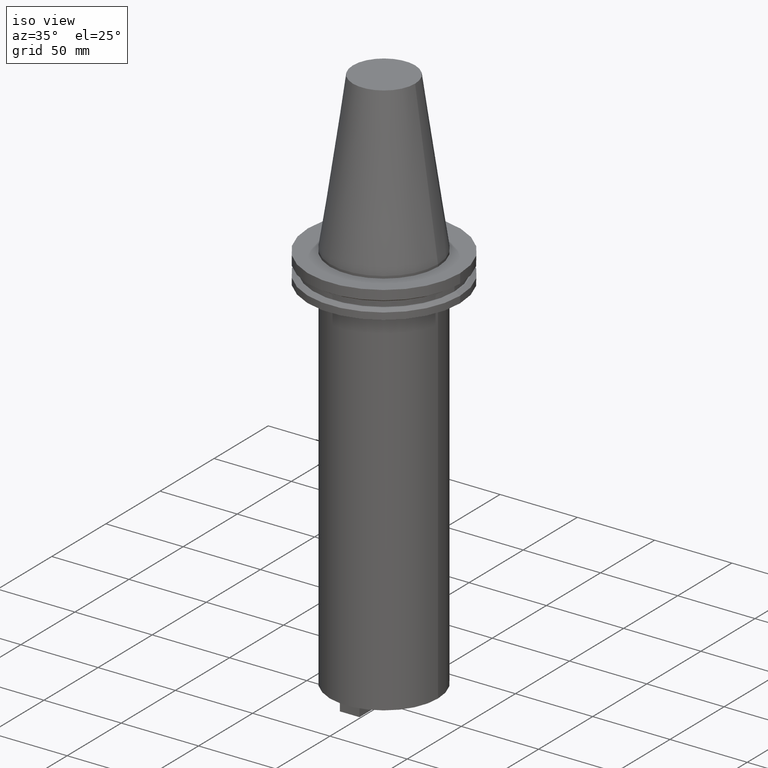
[diagram: clean part render]
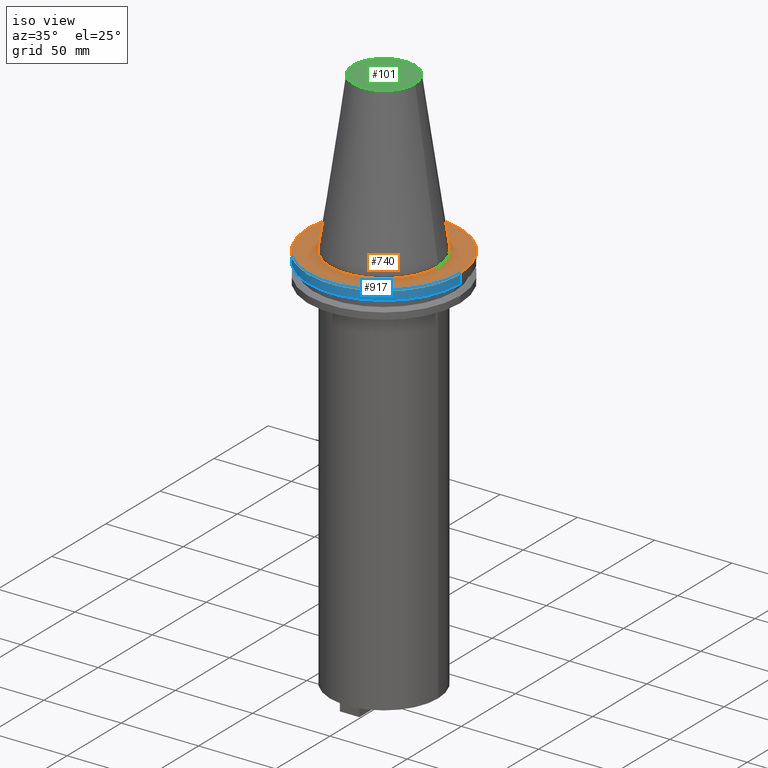
[diagram: same view with three faces highlighted in distinct colors, each labeled with its STEP entity id]
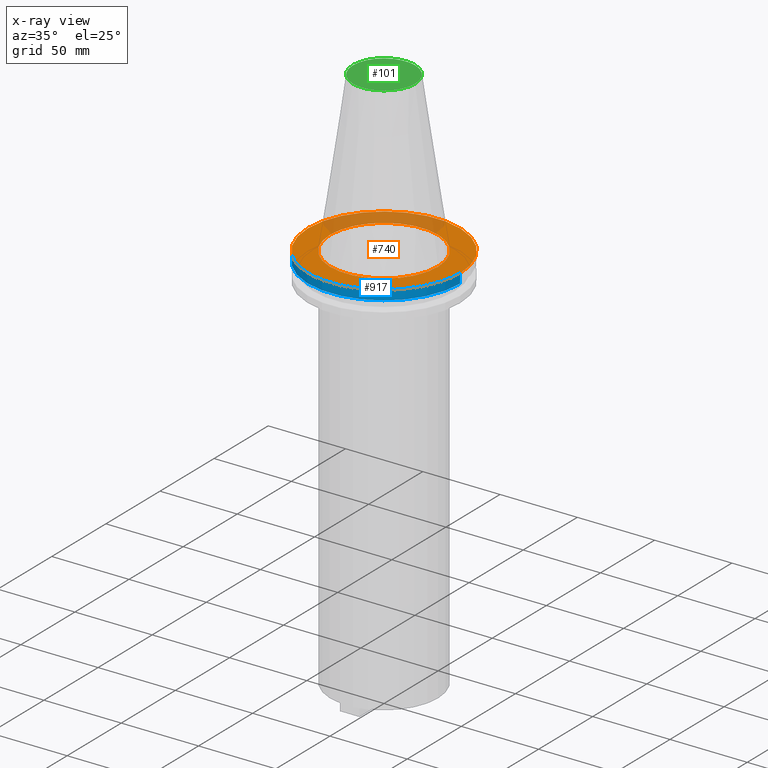
[diagram: x-ray of the same camera — body ghosted, the three highlighted faces saturated]
A machine part, iso view with three faces highlighted in distinct colors.
The next image is the same camera in x-ray (body ghosted, the three faces saturated) — at least one of them is partly hidden behind the body in this view.
Their STEP definitions:

[orange] entity #740 — the highlighted planar face has unit normal (0, 0, -1).
#29 = ORIENTED_EDGE ( 'NONE', *, *, #197, .T. ) ;
#50 = EDGE_LOOP ( 'NONE', ( #782, #29 ) ) ;
#74 = ORIENTED_EDGE ( 'NONE', *, *, #760, .F. ) ;
#84 = AXIS2_PLACEMENT_3D ( 'NONE', #615, #350, #563 ) ;
#112 = ORIENTED_EDGE ( 'NONE', *, *, #883, .F. ) ;
#115 = DIRECTION ( 'NONE',  ( 1.000000000000000000, 0.000000000000000000, 0.000000000000000000 ) ) ;
#136 = FACE_BOUND ( 'NONE', #955, .T. ) ;
#197 = EDGE_CURVE ( 'NONE', #891, #981, #912, .T. ) ;
#213 = AXIS2_PLACEMENT_3D ( 'NONE', #736, #822, #115 ) ;
#225 = DIRECTION ( 'NONE',  ( -0.000000000000000000, -0.000000000000000000, 1.000000000000000000 ) ) ;
#263 = VERTEX_POINT ( 'NONE', #319 ) ;
#280 = CIRCLE ( 'NONE', #84, 49.21499999999999631 ) ;
#293 = CARTESIAN_POINT ( 'NONE',  ( 0.000000000000000000, 49.21499999999999631, -1.499999999999992895 ) ) ;
#310 = CIRCLE ( 'NONE', #895, 34.92499999999999005 ) ;
#319 = CARTESIAN_POINT ( 'NONE',  ( -34.92499999999999005, 4.277078946022130098E-15, -1.499999999999987566 ) ) ;
#321 = EDGE_CURVE ( 'NONE', #981, #891, #280, .T. ) ;
#350 = DIRECTION ( 'NONE',  ( -0.000000000000000000, -0.000000000000000000, 1.000000000000000000 ) ) ;
#365 = DIRECTION ( 'NONE',  ( -0.000000000000000000, -0.000000000000000000, 1.000000000000000000 ) ) ;
#397 = DIRECTION ( 'NONE',  ( 1.000000000000000000, 0.000000000000000000, 0.000000000000000000 ) ) ;
#433 = CARTESIAN_POINT ( 'NONE',  ( 0.000000000000000000, 0.000000000000000000, -1.499999999999987566 ) ) ;
#563 = DIRECTION ( 'NONE',  ( 1.000000000000000000, 0.000000000000000000, 0.000000000000000000 ) ) ;
#567 = VERTEX_POINT ( 'NONE', #923 ) ;
#598 = DIRECTION ( 'NONE',  ( 1.000000000000000000, 0.000000000000000000, 0.000000000000000000 ) ) ;
#603 = AXIS2_PLACEMENT_3D ( 'NONE', #293, #905, #677 ) ;
#615 = CARTESIAN_POINT ( 'NONE',  ( 0.000000000000000000, 0.000000000000000000, -1.499999999999987566 ) ) ;
#662 = PLANE ( 'NONE',  #603 ) ;
#677 = DIRECTION ( 'NONE',  ( -1.000000000000000000, 0.000000000000000000, -0.000000000000000000 ) ) ;
#700 = CARTESIAN_POINT ( 'NONE',  ( 0.000000000000000000, 0.000000000000000000, -1.499999999999987566 ) ) ;
#736 = CARTESIAN_POINT ( 'NONE',  ( 0.000000000000000000, 0.000000000000000000, -1.499999999999987566 ) ) ;
#740 = ADVANCED_FACE ( 'NONE', ( #136, #922 ), #662, .F. ) ;
#760 = EDGE_CURVE ( 'NONE', #263, #567, #872, .T. ) ;
#782 = ORIENTED_EDGE ( 'NONE', *, *, #321, .T. ) ;
#793 = AXIS2_PLACEMENT_3D ( 'NONE', #700, #225, #397 ) ;
#822 = DIRECTION ( 'NONE',  ( -0.000000000000000000, -0.000000000000000000, 1.000000000000000000 ) ) ;
#872 = CIRCLE ( 'NONE', #213, 34.92499999999999005 ) ;
#883 = EDGE_CURVE ( 'NONE', #567, #263, #310, .T. ) ;
#891 = VERTEX_POINT ( 'NONE', #918 ) ;
#895 = AXIS2_PLACEMENT_3D ( 'NONE', #433, #365, #598 ) ;
#905 = DIRECTION ( 'NONE',  ( 0.000000000000000000, 0.000000000000000000, -1.000000000000000000 ) ) ;
#912 = CIRCLE ( 'NONE', #793, 49.21499999999999631 ) ;
#918 = CARTESIAN_POINT ( 'NONE',  ( -49.21499999999999631, 6.027099222003697826E-15, -1.499999999999987566 ) ) ;
#922 = FACE_OUTER_BOUND ( 'NONE', #50, .T. ) ;
#923 = CARTESIAN_POINT ( 'NONE',  ( 34.92499999999999005, 0.000000000000000000, -1.499999999999987566 ) ) ;
#942 = CARTESIAN_POINT ( 'NONE',  ( 49.21499999999999631, 0.000000000000000000, -1.499999999999987566 ) ) ;
#955 = EDGE_LOOP ( 'NONE', ( #112, #74 ) ) ;
#981 = VERTEX_POINT ( 'NONE', #942 ) ;

[blue] entity #917 — the highlighted cylindrical surface (partial cylindrical patch) has radius 49.215 mm, axis along (-0, -0, 1).
#31 = CIRCLE ( 'NONE', #382, 49.21500000000000341 ) ;
#80 = CARTESIAN_POINT ( 'NONE',  ( 49.21499999999999631, 0.000000000000000000, 101.5999999999999943 ) ) ;
#106 = VECTOR ( 'NONE', #520, 1000.000000000000000 ) ;
#171 = VERTEX_POINT ( 'NONE', #360 ) ;
#197 = EDGE_CURVE ( 'NONE', #891, #981, #912, .T. ) ;
#225 = DIRECTION ( 'NONE',  ( -0.000000000000000000, -0.000000000000000000, 1.000000000000000000 ) ) ;
#226 = CYLINDRICAL_SURFACE ( 'NONE', #947, 49.21499999999999631 ) ;
#257 = EDGE_CURVE ( 'NONE', #171, #981, #553, .T. ) ;
#301 = VECTOR ( 'NONE', #430, 1000.000000000000000 ) ;
#360 = CARTESIAN_POINT ( 'NONE',  ( 49.21500000000000341, 0.000000000000000000, -7.602389855251287187 ) ) ;
#382 = AXIS2_PLACEMENT_3D ( 'NONE', #626, #401, #926 ) ;
#391 = CARTESIAN_POINT ( 'NONE',  ( 0.000000000000000000, 0.000000000000000000, 101.5999999999999943 ) ) ;
#397 = DIRECTION ( 'NONE',  ( 1.000000000000000000, 0.000000000000000000, 0.000000000000000000 ) ) ;
#401 = DIRECTION ( 'NONE',  ( -0.000000000000000000, -0.000000000000000000, 1.000000000000000000 ) ) ;
#430 = DIRECTION ( 'NONE',  ( -0.000000000000000000, -0.000000000000000000, 1.000000000000000000 ) ) ;
#520 = DIRECTION ( 'NONE',  ( -0.000000000000000000, -0.000000000000000000, 1.000000000000000000 ) ) ;
#538 = DIRECTION ( 'NONE',  ( -0.000000000000000000, -0.000000000000000000, 1.000000000000000000 ) ) ;
#553 = LINE ( 'NONE', #80, #106 ) ;
#562 = ORIENTED_EDGE ( 'NONE', *, *, #257, .T. ) ;
#624 = VERTEX_POINT ( 'NONE', #738 ) ;
#626 = CARTESIAN_POINT ( 'NONE',  ( 0.000000000000000000, 0.000000000000000000, -7.602389855251287187 ) ) ;
#655 = ORIENTED_EDGE ( 'NONE', *, *, #786, .F. ) ;
#665 = EDGE_LOOP ( 'NONE', ( #655, #689, #562, #986 ) ) ;
#689 = ORIENTED_EDGE ( 'NONE', *, *, #946, .T. ) ;
#700 = CARTESIAN_POINT ( 'NONE',  ( 0.000000000000000000, 0.000000000000000000, -1.499999999999987566 ) ) ;
#701 = FACE_OUTER_BOUND ( 'NONE', #665, .T. ) ;
#738 = CARTESIAN_POINT ( 'NONE',  ( -49.21500000000000341, 6.027099222003699404E-15, -7.602389855251287187 ) ) ;
#786 = EDGE_CURVE ( 'NONE', #624, #891, #982, .T. ) ;
#793 = AXIS2_PLACEMENT_3D ( 'NONE', #700, #225, #397 ) ;
#842 = CARTESIAN_POINT ( 'NONE',  ( -49.21499999999999631, 6.027099222003697826E-15, 101.5999999999999943 ) ) ;
#845 = DIRECTION ( 'NONE',  ( 1.000000000000000000, 0.000000000000000000, 0.000000000000000000 ) ) ;
#891 = VERTEX_POINT ( 'NONE', #918 ) ;
#912 = CIRCLE ( 'NONE', #793, 49.21499999999999631 ) ;
#917 = ADVANCED_FACE ( 'NONE', ( #701 ), #226, .T. ) ;
#918 = CARTESIAN_POINT ( 'NONE',  ( -49.21499999999999631, 6.027099222003697826E-15, -1.499999999999987566 ) ) ;
#926 = DIRECTION ( 'NONE',  ( 1.000000000000000000, 0.000000000000000000, 0.000000000000000000 ) ) ;
#942 = CARTESIAN_POINT ( 'NONE',  ( 49.21499999999999631, 0.000000000000000000, -1.499999999999987566 ) ) ;
#946 = EDGE_CURVE ( 'NONE', #624, #171, #31, .T. ) ;
#947 = AXIS2_PLACEMENT_3D ( 'NONE', #391, #538, #845 ) ;
#981 = VERTEX_POINT ( 'NONE', #942 ) ;
#982 = LINE ( 'NONE', #842, #301 ) ;
#986 = ORIENTED_EDGE ( 'NONE', *, *, #197, .F. ) ;

[green] entity #101 — the highlighted planar face has unit normal (0, 0, -1).
#8 = ORIENTED_EDGE ( 'NONE', *, *, #495, .T. ) ;
#19 = DIRECTION ( 'NONE',  ( 1.000000000000000000, 0.000000000000000000, 0.000000000000000000 ) ) ;
#22 = CARTESIAN_POINT ( 'NONE',  ( 0.000000000000000000, 0.000000000000000000, 101.5999999999999801 ) ) ;
#42 = DIRECTION ( 'NONE',  ( 0.000000000000000000, 0.000000000000000000, -1.000000000000000000 ) ) ;
#52 = EDGE_CURVE ( 'NONE', #959, #556, #340, .T. ) ;
#101 = ADVANCED_FACE ( 'NONE', ( #983 ), #663, .F. ) ;
#150 = CARTESIAN_POINT ( 'NONE',  ( 20.10819343178871321, 3.369811209154858606E-15, 101.5999999999999801 ) ) ;
#189 = DIRECTION ( 'NONE',  ( -1.000000000000000000, 0.000000000000000000, -0.000000000000000000 ) ) ;
#316 = DIRECTION ( 'NONE',  ( -0.000000000000000000, -0.000000000000000000, 1.000000000000000000 ) ) ;
#340 = CIRCLE ( 'NONE', #775, 20.10819343178871321 ) ;
#349 = AXIS2_PLACEMENT_3D ( 'NONE', #409, #712, #19 ) ;
#409 = CARTESIAN_POINT ( 'NONE',  ( 0.000000000000000000, 0.000000000000000000, 101.5999999999999801 ) ) ;
#440 = CARTESIAN_POINT ( 'NONE',  ( -20.10819343178871321, 0.000000000000000000, 101.5999999999999801 ) ) ;
#464 = AXIS2_PLACEMENT_3D ( 'NONE', #587, #42, #189 ) ;
#491 = DIRECTION ( 'NONE',  ( 1.000000000000000000, 0.000000000000000000, 0.000000000000000000 ) ) ;
#495 = EDGE_CURVE ( 'NONE', #556, #959, #522, .T. ) ;
#522 = CIRCLE ( 'NONE', #349, 20.10819343178871321 ) ;
#556 = VERTEX_POINT ( 'NONE', #440 ) ;
#587 = CARTESIAN_POINT ( 'NONE',  ( 0.000000000000000000, 20.10819343178871321, 101.5999999999999943 ) ) ;
#656 = ORIENTED_EDGE ( 'NONE', *, *, #52, .T. ) ;
#663 = PLANE ( 'NONE',  #464 ) ;
#712 = DIRECTION ( 'NONE',  ( -0.000000000000000000, -0.000000000000000000, 1.000000000000000000 ) ) ;
#775 = AXIS2_PLACEMENT_3D ( 'NONE', #22, #316, #491 ) ;
#887 = EDGE_LOOP ( 'NONE', ( #8, #656 ) ) ;
#959 = VERTEX_POINT ( 'NONE', #150 ) ;
#983 = FACE_OUTER_BOUND ( 'NONE', #887, .T. ) ;